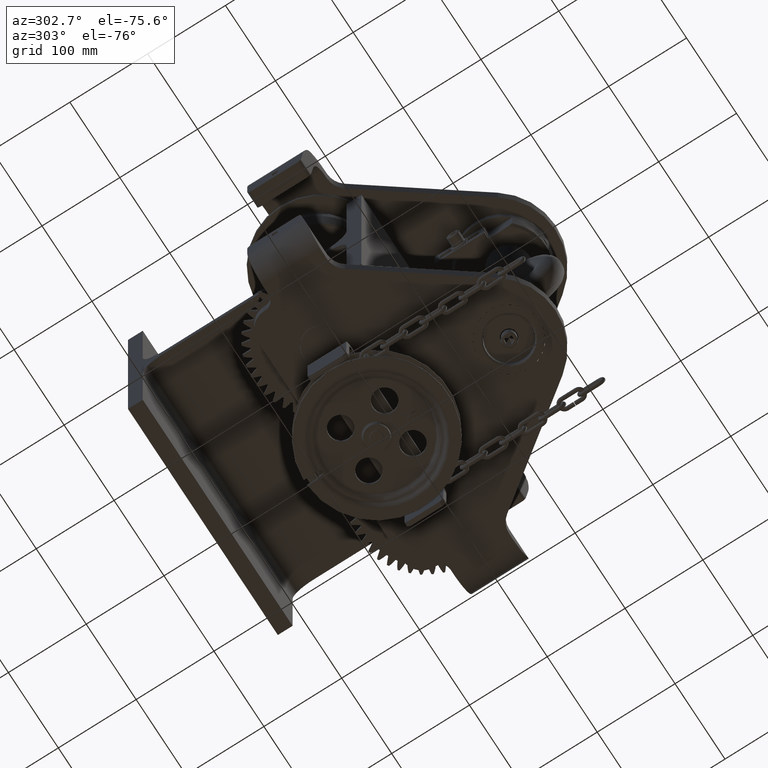
[diagram: clean part render]
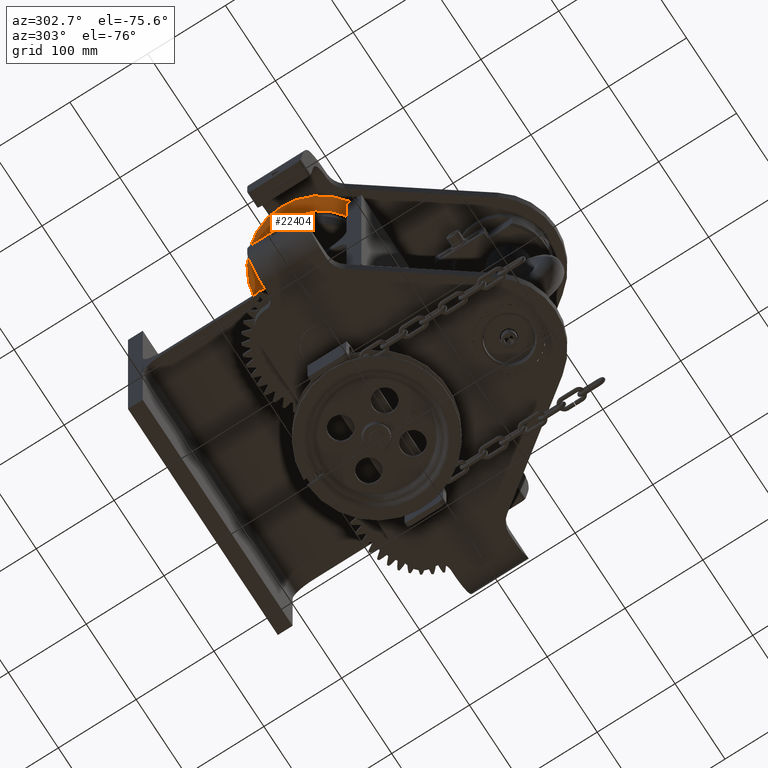
[diagram: same view with one face highlighted and labeled with its STEP entity id]
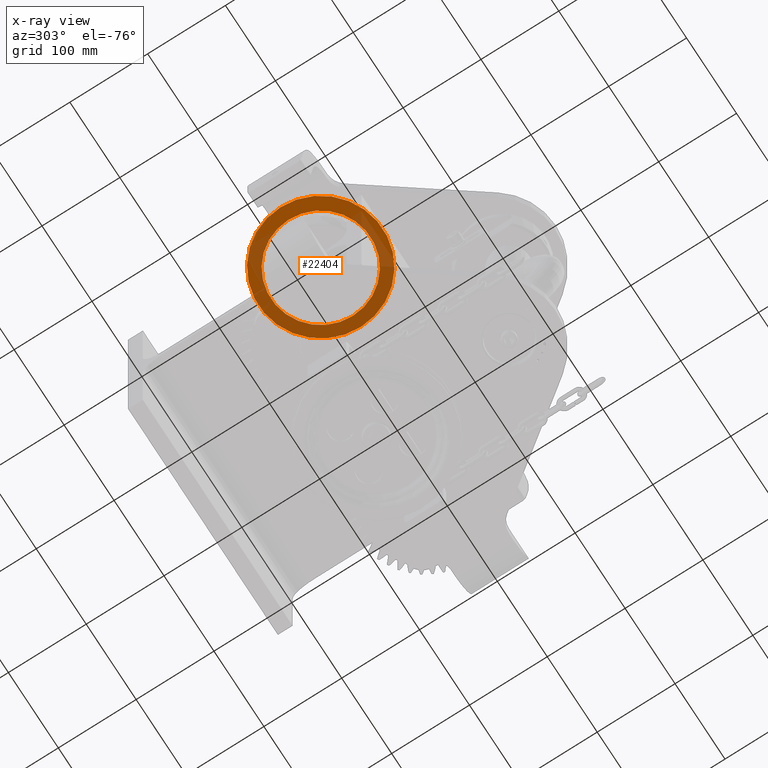
[diagram: x-ray of the same camera — body ghosted, the highlighted face saturated]
A machine part, auxiliary view. The second image highlights one B-rep face of the part: STEP entity #22404.
The next image is the same camera in x-ray: the body ghosted, the highlighted face saturated — about 62% of this face is hidden behind the body in this view.
In plain terms, the highlighted conical surface has half-angle 78 deg.
Its self-contained STEP definition (entity closure, byte-faithful):
#5061 = DIRECTION ( 'NONE',  ( -2.703037920830814200E-016, 5.223868333088738900E-016, 1.000000000000000000 ) ) ;
#6088 = CARTESIAN_POINT ( 'NONE',  ( -104.5000000000000400, -68.49999999999991500, 152.6094973562564400 ) ) ;
#7411 = CARTESIAN_POINT ( 'NONE',  ( -184.2618192613678600, -68.20265234791480700, 155.9597846072466900 ) ) ;
#8055 = DIRECTION ( 'NONE',  ( 2.703037920830814200E-016, -5.223868333088738900E-016, -1.000000000000000000 ) ) ;
#12717 = ORIENTED_EDGE ( 'NONE', *, *, #27694, .T. ) ;
#15699 = EDGE_CURVE ( 'NONE', #51659, #51659, #54085, .T. ) ;
#20652 = DIRECTION ( 'NONE',  ( 0.9999930512865514700, -0.003727918804448531000, 4.336774047869921800E-016 ) ) ;
#22404 = ADVANCED_FACE ( 'NONE', ( #29738, #49863 ), #28114, .T. ) ;
#24428 = AXIS2_PLACEMENT_3D ( 'NONE', #6088, #41491, #20652 ) ;
#26735 = CARTESIAN_POINT ( 'NONE',  ( -40.49993349037896500, -68.73858870931165700, 152.6094973562564700 ) ) ;
#27694 = EDGE_CURVE ( 'NONE', #35569, #35569, #48534, .T. ) ;
#28114 = CONICAL_SURFACE ( 'NONE', #53244, 64.00051123083417800, 1.361356816555583600 ) ;
#29738 = FACE_OUTER_BOUND ( 'NONE', #52603, .T. ) ;
#33624 = CARTESIAN_POINT ( 'NONE',  ( -104.5000000000000400, -68.49999999999991500, 155.9597846072467200 ) ) ;
#35569 = VERTEX_POINT ( 'NONE', #7411 ) ;
#41377 = CARTESIAN_POINT ( 'NONE',  ( -104.5000000000000400, -68.49999999999991500, 152.6094973562564400 ) ) ;
#41491 = DIRECTION ( 'NONE',  ( -2.703037920830814200E-016, 5.223868333088738900E-016, 1.000000000000000000 ) ) ;
#43027 = DIRECTION ( 'NONE',  ( -0.9999930512865513600, 0.003727918804448411700, -3.479783060004815700E-016 ) ) ;
#48534 = CIRCLE ( 'NONE', #61340, 79.76237350724531400 ) ;
#48810 = EDGE_LOOP ( 'NONE', ( #65696 ) ) ;
#49863 = FACE_BOUND ( 'NONE', #48810, .T. ) ;
#51659 = VERTEX_POINT ( 'NONE', #26735 ) ;
#52603 = EDGE_LOOP ( 'NONE', ( #12717 ) ) ;
#53244 = AXIS2_PLACEMENT_3D ( 'NONE', #41377, #5061, #62072 ) ;
#54085 = CIRCLE ( 'NONE', #24428, 64.00051123083417800 ) ;
#61340 = AXIS2_PLACEMENT_3D ( 'NONE', #33624, #8055, #43027 ) ;
#62072 = DIRECTION ( 'NONE',  ( 0.9999930512865514700, -0.003727918804448531000, 4.336774047869921800E-016 ) ) ;
#65696 = ORIENTED_EDGE ( 'NONE', *, *, #15699, .T. ) ;